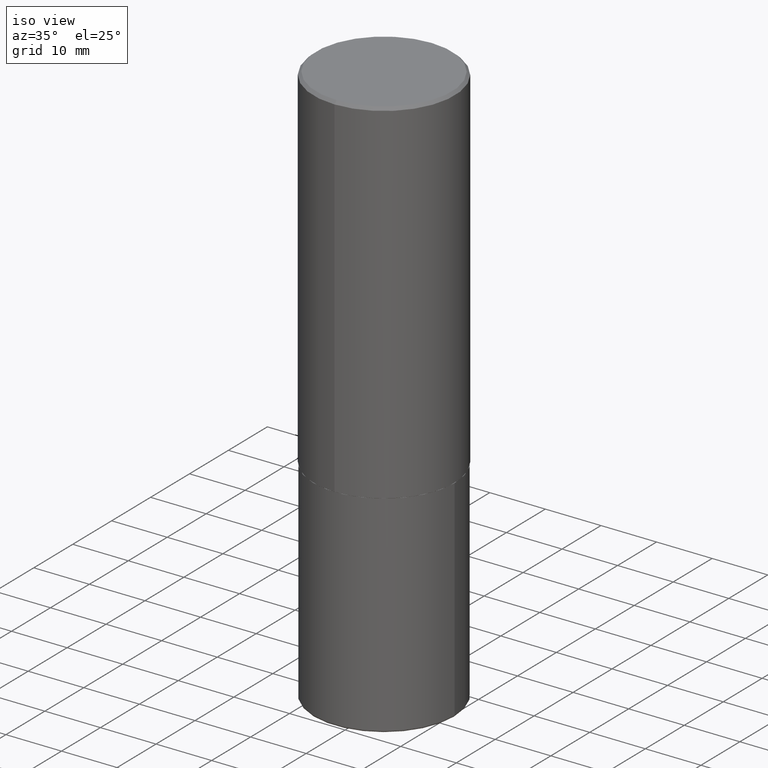
[diagram: clean part render]
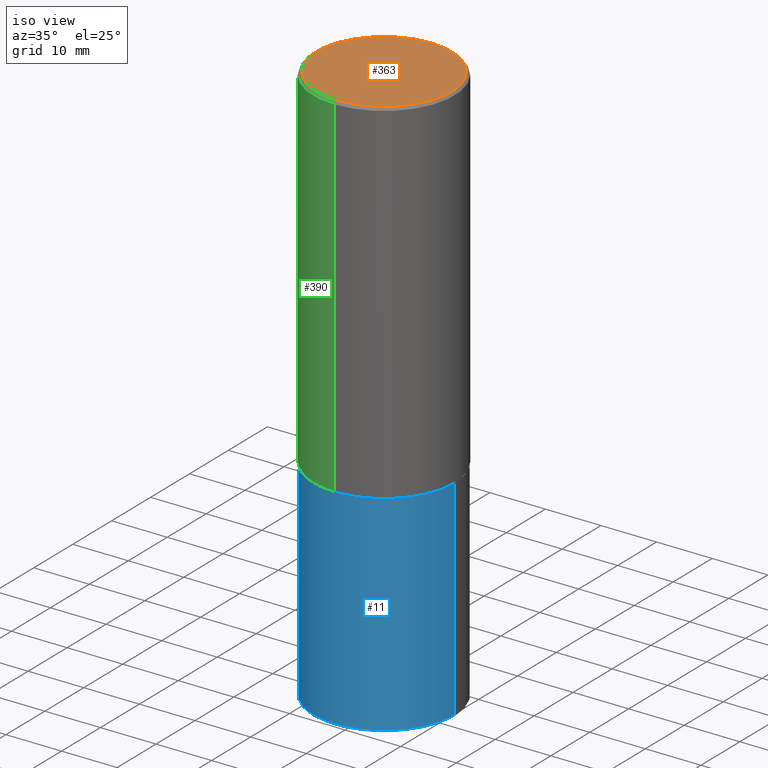
[diagram: same view with three faces highlighted in distinct colors, each labeled with its STEP entity id]
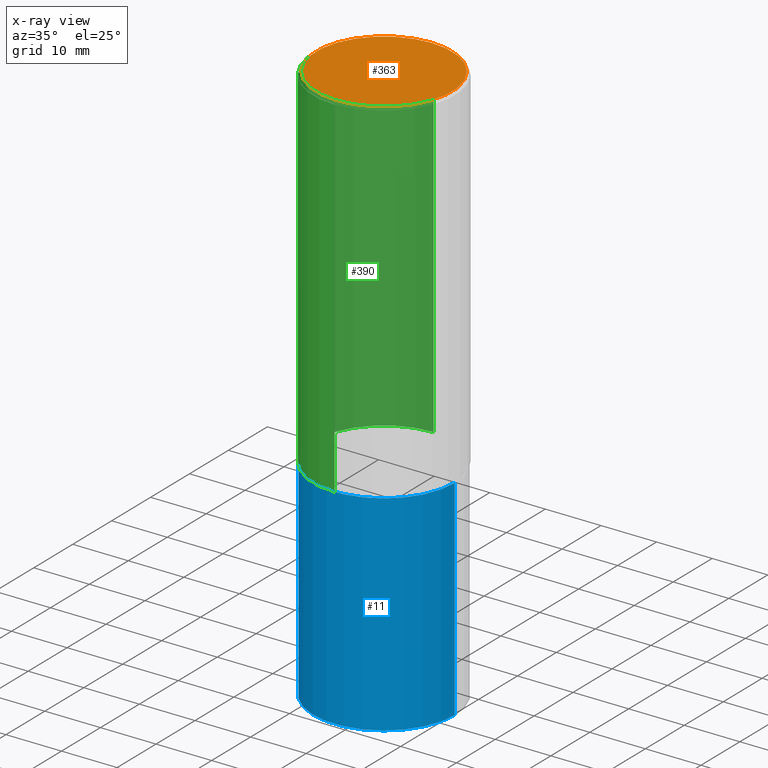
[diagram: x-ray of the same camera — body ghosted, the three highlighted faces saturated]
A machine part, iso view with three faces highlighted in distinct colors.
The next image is the same camera in x-ray (body ghosted, the three faces saturated) — at least one of them is partly hidden behind the body in this view.
Their STEP definitions:

[orange] entity #363 — the highlighted planar face has unit normal (0, -0, -1).
#33 = CIRCLE ( 'NONE', #76, 0.4799999999999998157 ) ;
#43 = AXIS2_PLACEMENT_3D ( 'NONE', #240, #156, #348 ) ;
#72 = PLANE ( 'NONE',  #43 ) ;
#76 = AXIS2_PLACEMENT_3D ( 'NONE', #241, #373, #88 ) ;
#86 = CIRCLE ( 'NONE', #254, 0.4799999999999998157 ) ;
#88 = DIRECTION ( 'NONE',  ( -6.982962677686265922E-15, -1.000000000000000000, 3.492918657822378473E-15 ) ) ;
#120 = CARTESIAN_POINT ( 'NONE',  ( 3.421651712066270057E-15, 0.4799999999999998157, -1.552124180431797316E-15 ) ) ;
#140 = VERTEX_POINT ( 'NONE', #120 ) ;
#156 = DIRECTION ( 'NONE',  ( 2.444465131706344694E-29, -3.492918657822378868E-15, -1.000000000000000000 ) ) ;
#165 = EDGE_CURVE ( 'NONE', #301, #140, #86, .T. ) ;
#179 = EDGE_CURVE ( 'NONE', #140, #301, #33, .T. ) ;
#240 = CARTESIAN_POINT ( 'NONE',  ( 3.351822085289406364E-15, 0.4799999999999998157, -1.614362568093269153E-15 ) ) ;
#241 = CARTESIAN_POINT ( 'NONE',  ( -3.042791369841808055E-45, 4.347872509910743958E-31, 1.244767753229437217E-16 ) ) ;
#244 = CARTESIAN_POINT ( 'NONE',  ( -3.042791369841808055E-45, 4.347872509910743958E-31, 1.244767753229437217E-16 ) ) ;
#254 = AXIS2_PLACEMENT_3D ( 'NONE', #244, #376, #338 ) ;
#258 = EDGE_LOOP ( 'NONE', ( #305, #391 ) ) ;
#294 = FACE_OUTER_BOUND ( 'NONE', #258, .T. ) ;
#301 = VERTEX_POINT ( 'NONE', #394 ) ;
#305 = ORIENTED_EDGE ( 'NONE', *, *, #179, .T. ) ;
#338 = DIRECTION ( 'NONE',  ( -6.982962677686265922E-15, -1.000000000000000000, 3.492918657822378473E-15 ) ) ;
#348 = DIRECTION ( 'NONE',  ( 6.982962677686265922E-15, 1.000000000000000000, -3.492918657822378868E-15 ) ) ;
#363 = ADVANCED_FACE ( 'NONE', ( #294 ), #72, .F. ) ;
#373 = DIRECTION ( 'NONE',  ( -2.444465131706345255E-29, 3.492918657822378473E-15, 1.000000000000000000 ) ) ;
#376 = DIRECTION ( 'NONE',  ( -2.444465131706345255E-29, 3.492918657822378473E-15, 1.000000000000000000 ) ) ;
#391 = ORIENTED_EDGE ( 'NONE', *, *, #165, .T. ) ;
#394 = CARTESIAN_POINT ( 'NONE',  ( -3.361644018908049661E-15, -0.4799999999999998157, 1.801077731077684661E-15 ) ) ;

[blue] entity #11 — the highlighted cylindrical surface (partial cylindrical patch) has radius 12.7 mm, axis along (-0, 0, 1).
#11 = ADVANCED_FACE ( 'NONE', ( #398 ), #108, .T. ) ;
#16 = LINE ( 'NONE', #59, #60 ) ;
#30 = AXIS2_PLACEMENT_3D ( 'NONE', #63, #277, #188 ) ;
#34 = VECTOR ( 'NONE', #166, 39.37007874015748143 ) ;
#39 = CARTESIAN_POINT ( 'NONE',  ( 6.113672015462842613E-29, -8.728703347107864943E-15, -2.500000000000000000 ) ) ;
#49 = DIRECTION ( 'NONE',  ( -2.445468806185136597E-29, 3.491481338843145583E-15, 1.000000000000000000 ) ) ;
#52 = CIRCLE ( 'NONE', #112, 0.5000000000000000000 ) ;
#59 = CARTESIAN_POINT ( 'NONE',  ( -0.5000000000000000000, 3.552713678800500929E-15, -2.459467545127452891E-29 ) ) ;
#60 = VECTOR ( 'NONE', #413, 39.37007874015748143 ) ;
#63 = CARTESIAN_POINT ( 'NONE',  ( 9.745193192647769069E-29, -1.391355313528993407E-14, -3.984999999999999876 ) ) ;
#67 = VERTEX_POINT ( 'NONE', #185 ) ;
#95 = EDGE_CURVE ( 'NONE', #197, #67, #322, .T. ) ;
#103 = EDGE_CURVE ( 'NONE', #197, #274, #16, .T. ) ;
#106 = ORIENTED_EDGE ( 'NONE', *, *, #95, .T. ) ;
#108 = CYLINDRICAL_SURFACE ( 'NONE', #171, 0.5000000000000000000 ) ;
#112 = AXIS2_PLACEMENT_3D ( 'NONE', #39, #49, #232 ) ;
#136 = LINE ( 'NONE', #201, #34 ) ;
#166 = DIRECTION ( 'NONE',  ( -2.445468806185136877E-29, 3.491481338843145188E-15, 1.000000000000000000 ) ) ;
#170 = ORIENTED_EDGE ( 'NONE', *, *, #356, .T. ) ;
#171 = AXIS2_PLACEMENT_3D ( 'NONE', #231, #202, #173 ) ;
#173 = DIRECTION ( 'NONE',  ( 1.000000000000000000, -6.982962677686266711E-15, 4.876176775795935793E-29 ) ) ;
#185 = CARTESIAN_POINT ( 'NONE',  ( 0.5000000000000001110, -1.740503447413306742E-14, -3.984999999999999876 ) ) ;
#188 = DIRECTION ( 'NONE',  ( 1.000000000000000000, -6.982962677686266711E-15, 0.000000000000000000 ) ) ;
#197 = VERTEX_POINT ( 'NONE', #302 ) ;
#201 = CARTESIAN_POINT ( 'NONE',  ( 0.5000000000000000000, -3.491481338843133355E-15, 2.438088387897967896E-29 ) ) ;
#202 = DIRECTION ( 'NONE',  ( -2.445468806185136597E-29, 3.491481338843145583E-15, 1.000000000000000000 ) ) ;
#206 = CARTESIAN_POINT ( 'NONE',  ( -0.5000000000000000000, -7.768414562398398576E-15, -2.500000000000000000 ) ) ;
#227 = ORIENTED_EDGE ( 'NONE', *, *, #236, .F. ) ;
#231 = CARTESIAN_POINT ( 'NONE',  ( 0.000000000000000000, 0.000000000000000000, 0.000000000000000000 ) ) ;
#232 = DIRECTION ( 'NONE',  ( 1.000000000000000000, -6.982962677686269077E-15, 0.000000000000000000 ) ) ;
#236 = EDGE_CURVE ( 'NONE', #274, #264, #52, .T. ) ;
#264 = VERTEX_POINT ( 'NONE', #392 ) ;
#274 = VERTEX_POINT ( 'NONE', #206 ) ;
#277 = DIRECTION ( 'NONE',  ( -2.445468806185136597E-29, 3.491481338843145583E-15, 1.000000000000000000 ) ) ;
#292 = ORIENTED_EDGE ( 'NONE', *, *, #103, .F. ) ;
#302 = CARTESIAN_POINT ( 'NONE',  ( -0.5000000000000001110, -1.036083945648943156E-14, -3.984999999999999876 ) ) ;
#322 = CIRCLE ( 'NONE', #30, 0.5000000000000000000 ) ;
#356 = EDGE_CURVE ( 'NONE', #67, #264, #136, .T. ) ;
#392 = CARTESIAN_POINT ( 'NONE',  ( 0.5000000000000000000, -1.222018468595099830E-14, -2.500000000000000000 ) ) ;
#398 = FACE_OUTER_BOUND ( 'NONE', #407, .T. ) ;
#407 = EDGE_LOOP ( 'NONE', ( #292, #106, #170, #227 ) ) ;
#413 = DIRECTION ( 'NONE',  ( -2.445468806185136877E-29, 3.491481338843145188E-15, 1.000000000000000000 ) ) ;

[green] entity #390 — the highlighted cylindrical surface (partial cylindrical patch) has radius 12.7 mm, axis along (-0, 0, 1).
#3 = AXIS2_PLACEMENT_3D ( 'NONE', #313, #25, #157 ) ;
#4 = DIRECTION ( 'NONE',  ( -6.982962677686265922E-15, -1.000000000000000000, 3.491643216902136408E-15 ) ) ;
#9 = LINE ( 'NONE', #397, #297 ) ;
#10 = ORIENTED_EDGE ( 'NONE', *, *, #336, .F. ) ;
#14 = VERTEX_POINT ( 'NONE', #365 ) ;
#17 = LINE ( 'NONE', #412, #279 ) ;
#25 = DIRECTION ( 'NONE',  ( -2.444465131706345255E-29, 3.492918657822378473E-15, 1.000000000000000000 ) ) ;
#42 = AXIS2_PLACEMENT_3D ( 'NONE', #259, #107, #4 ) ;
#46 = CARTESIAN_POINT ( 'NONE',  ( -3.491481338843073796E-15, -0.5000000000000089928, -2.498999999999998778 ) ) ;
#89 = EDGE_CURVE ( 'NONE', #256, #326, #216, .T. ) ;
#107 = DIRECTION ( 'NONE',  ( -2.444465131706345255E-29, 3.492918657822378473E-15, 1.000000000000000000 ) ) ;
#117 = EDGE_LOOP ( 'NONE', ( #10, #252, #270, #251 ) ) ;
#127 = FACE_OUTER_BOUND ( 'NONE', #117, .T. ) ;
#131 = AXIS2_PLACEMENT_3D ( 'NONE', #152, #337, #246 ) ;
#148 = VERTEX_POINT ( 'NONE', #379 ) ;
#152 = CARTESIAN_POINT ( 'NONE',  ( 0.000000000000000000, 0.000000000000000000, 0.000000000000000000 ) ) ;
#154 = CYLINDRICAL_SURFACE ( 'NONE', #131, 0.5000000000000001110 ) ;
#157 = DIRECTION ( 'NONE',  ( -6.982962677686266711E-15, -1.000000000000000000, 3.278217592397114284E-15 ) ) ;
#200 = EDGE_CURVE ( 'NONE', #14, #148, #316, .T. ) ;
#204 = CARTESIAN_POINT ( 'NONE',  ( 3.552713678800533273E-15, 0.4999999999999916178, -2.499000000000001886 ) ) ;
#216 = CIRCLE ( 'NONE', #3, 0.5000000000000002220 ) ;
#230 = DIRECTION ( 'NONE',  ( -2.444465131706345255E-29, 3.492918657822378868E-15, 1.000000000000000000 ) ) ;
#246 = DIRECTION ( 'NONE',  ( -6.982962677686265922E-15, -1.000000000000000000, 3.492918657822378473E-15 ) ) ;
#251 = ORIENTED_EDGE ( 'NONE', *, *, #200, .F. ) ;
#252 = ORIENTED_EDGE ( 'NONE', *, *, #89, .T. ) ;
#256 = VERTEX_POINT ( 'NONE', #204 ) ;
#259 = CARTESIAN_POINT ( 'NONE',  ( 4.888930263412717169E-31, -6.985837315644793974E-17, -0.02000000000000010797 ) ) ;
#270 = ORIENTED_EDGE ( 'NONE', *, *, #377, .T. ) ;
#279 = VECTOR ( 'NONE', #346, 39.37007874015748143 ) ;
#297 = VECTOR ( 'NONE', #230, 39.37007874015748143 ) ;
#313 = CARTESIAN_POINT ( 'NONE',  ( 6.108718364134157248E-29, -8.728803725898125516E-15, -2.499000000000000110 ) ) ;
#316 = CIRCLE ( 'NONE', #42, 0.5000000000000000000 ) ;
#326 = VERTEX_POINT ( 'NONE', #46 ) ;
#336 = EDGE_CURVE ( 'NONE', #256, #14, #9, .T. ) ;
#337 = DIRECTION ( 'NONE',  ( -2.444465131706345255E-29, 3.492918657822378473E-15, 1.000000000000000000 ) ) ;
#346 = DIRECTION ( 'NONE',  ( -2.444465131706345255E-29, 3.492918657822378868E-15, 1.000000000000000000 ) ) ;
#365 = CARTESIAN_POINT ( 'NONE',  ( 3.491481338843133355E-15, 0.4999999999999999445, -0.02000000000000185310 ) ) ;
#377 = EDGE_CURVE ( 'NONE', #326, #148, #17, .T. ) ;
#379 = CARTESIAN_POINT ( 'NONE',  ( -3.430248998885764992E-15, -0.5000000000000001110, -0.01999999999999835937 ) ) ;
#390 = ADVANCED_FACE ( 'NONE', ( #127 ), #154, .T. ) ;
#397 = CARTESIAN_POINT ( 'NONE',  ( 3.552713678800501718E-15, 0.5000000000000001110, -1.746459328911189631E-15 ) ) ;
#412 = CARTESIAN_POINT ( 'NONE',  ( -3.491481338843133750E-15, -0.5000000000000001110, 1.746459328911189631E-15 ) ) ;